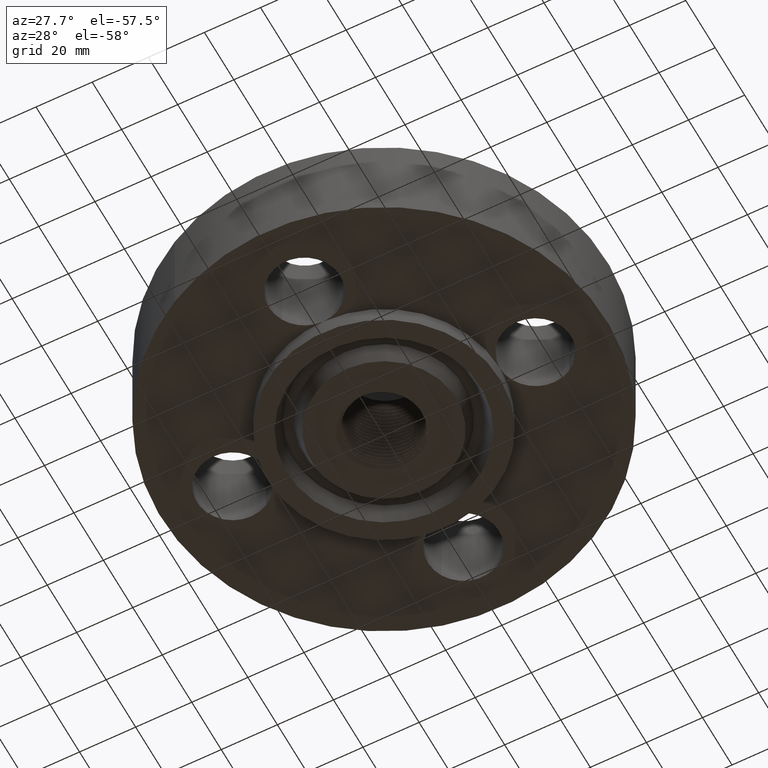
[diagram: clean part render]
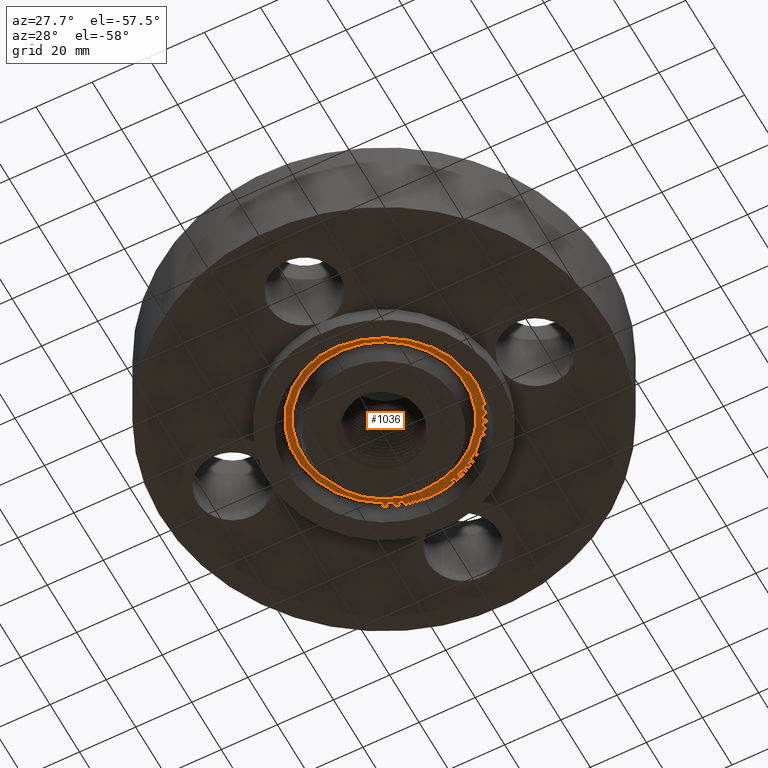
[diagram: same view with one face highlighted and labeled with its STEP entity id]
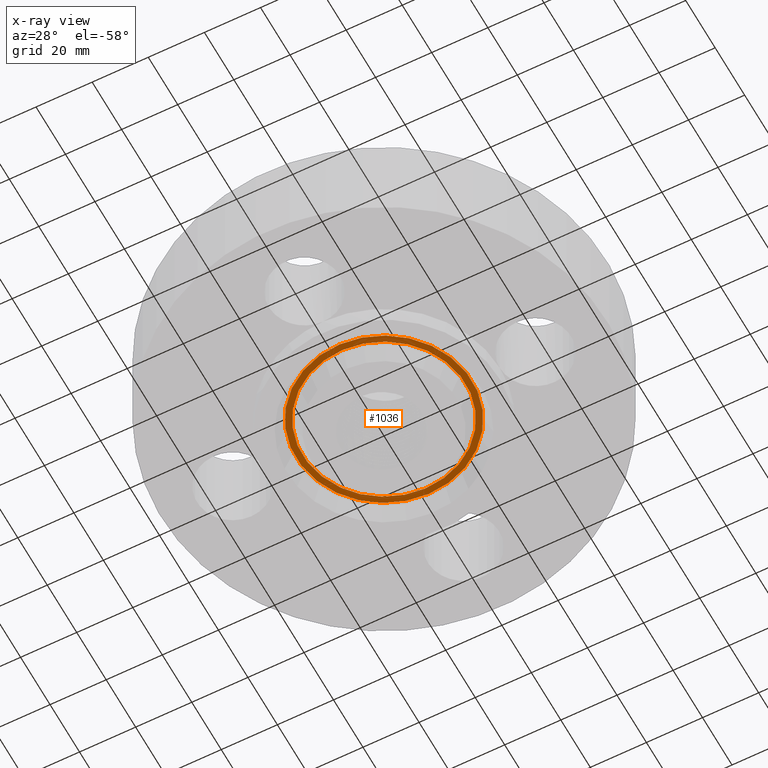
[diagram: x-ray of the same camera — body ghosted, the highlighted face saturated]
A machine part, auxiliary view. The second image highlights one B-rep face of the part: STEP entity #1036.
The next image is the same camera in x-ray: the body ghosted, the highlighted face saturated — about 0% of this face is hidden behind the body in this view.
In plain terms, the highlighted planar face has unit normal (0, 0, -1).
Its self-contained STEP definition (entity closure, byte-faithful):
#576=AXIS2_PLACEMENT_3D('Plane Axis2P3D',#573,#574,#575) ;
#958=AXIS2_PLACEMENT_3D('Circle Axis2P3D',#956,#957,$) ;
#1004=AXIS2_PLACEMENT_3D('Circle Axis2P3D',#1002,#1003,$) ;
#1020=AXIS2_PLACEMENT_3D('Circle Axis2P3D',#1018,#1019,$) ;
#1029=AXIS2_PLACEMENT_3D('Circle Axis2P3D',#1027,#1028,$) ;
#573=CARTESIAN_POINT('Axis2P3D Location',(0.,1.62500000001,0.)) ;
#953=CARTESIAN_POINT('Vertex',(-0.591065932797,1.08193893271,-3.93386111088E-017)) ;
#956=CARTESIAN_POINT('Axis2P3D Location',(0.,0.,-3.93386111088E-017)) ;
#960=CARTESIAN_POINT('Vertex',(0.591065932797,-1.08193893271,-3.93386111088E-017)) ;
#1002=CARTESIAN_POINT('Axis2P3D Location',(0.,0.,-3.93386111088E-017)) ;
#1018=CARTESIAN_POINT('Axis2P3D Location',(0.,0.,0.)) ;
#1022=CARTESIAN_POINT('Vertex',(0.547569721393,-1.00231965179,5.24514814784E-017)) ;
#1024=CARTESIAN_POINT('Vertex',(-0.547569721393,1.00231965179,5.24514814784E-017)) ;
#1027=CARTESIAN_POINT('Axis2P3D Location',(0.,0.,0.)) ;
#574=DIRECTION('Axis2P3D Direction',(0.,0.,-0.0393700787402)) ;
#575=DIRECTION('Axis2P3D XDirection',(0.0393700787402,0.,0.)) ;
#957=DIRECTION('Axis2P3D Direction',(0.,0.,0.0393700787402)) ;
#1003=DIRECTION('Axis2P3D Direction',(0.,0.,0.0393700787402)) ;
#1019=DIRECTION('Axis2P3D Direction',(0.,0.,-0.0393700787402)) ;
#1028=DIRECTION('Axis2P3D Direction',(0.,0.,-0.0393700787402)) ;
#1015=ORIENTED_EDGE('',*,*,#962,.F.) ;
#1016=ORIENTED_EDGE('',*,*,#1006,.F.) ;
#1033=ORIENTED_EDGE('',*,*,#1026,.T.) ;
#1034=ORIENTED_EDGE('',*,*,#1031,.T.) ;
#1035=FACE_BOUND('',#1032,.T.) ;
#1036=ADVANCED_FACE('PartBody',(#1017,#1035),#577,.T.) ;
#959=CIRCLE('generated circle',#958,1.23286284356) ;
#1005=CIRCLE('generated circle',#1004,1.23286284356) ;
#1021=CIRCLE('generated circle',#1020,1.14213715645) ;
#1030=CIRCLE('generated circle',#1029,1.14213715645) ;
#962=EDGE_CURVE('',#954,#961,#959,.T.) ;
#1006=EDGE_CURVE('',#961,#954,#1005,.T.) ;
#1026=EDGE_CURVE('',#1023,#1025,#1021,.F.) ;
#1031=EDGE_CURVE('',#1025,#1023,#1030,.F.) ;
#1014=EDGE_LOOP('',(#1015,#1016)) ;
#1032=EDGE_LOOP('',(#1033,#1034)) ;
#1017=FACE_OUTER_BOUND('',#1014,.T.) ;
#577=PLANE('',#576) ;
#954=VERTEX_POINT('',#953) ;
#961=VERTEX_POINT('',#960) ;
#1023=VERTEX_POINT('',#1022) ;
#1025=VERTEX_POINT('',#1024) ;